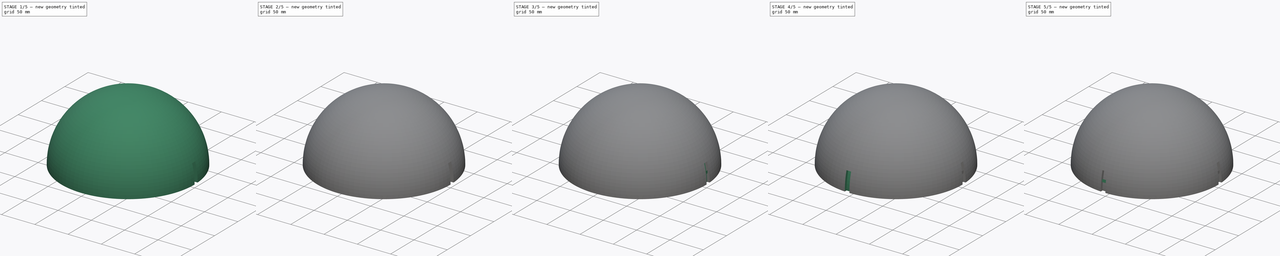
[diagram: build sequence overview — one tinted view per stage of 5, left to right]
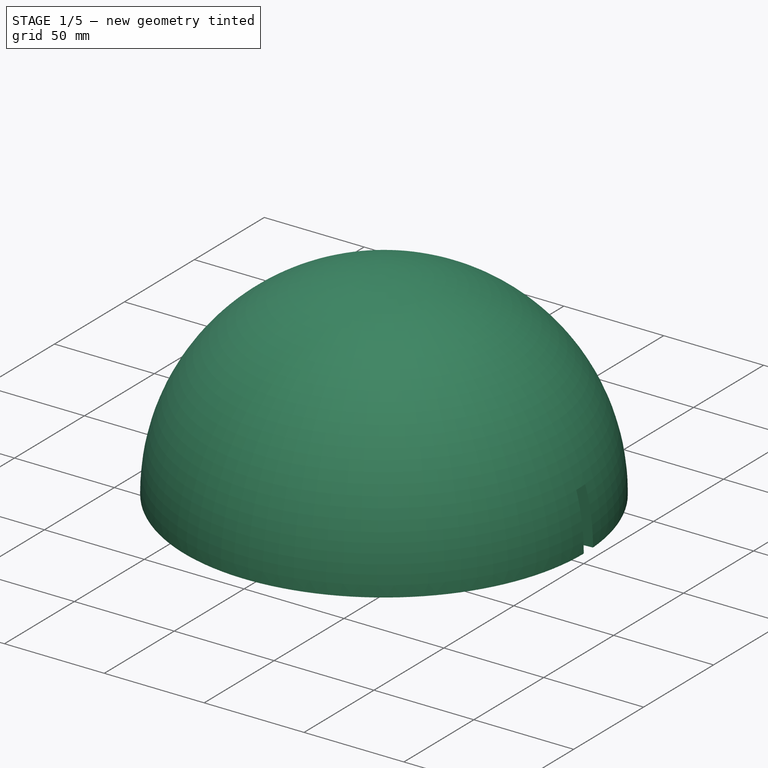
[diagram: stage 1 of 5 — iso view after this stage's code; geometry added in this stage tinted green]
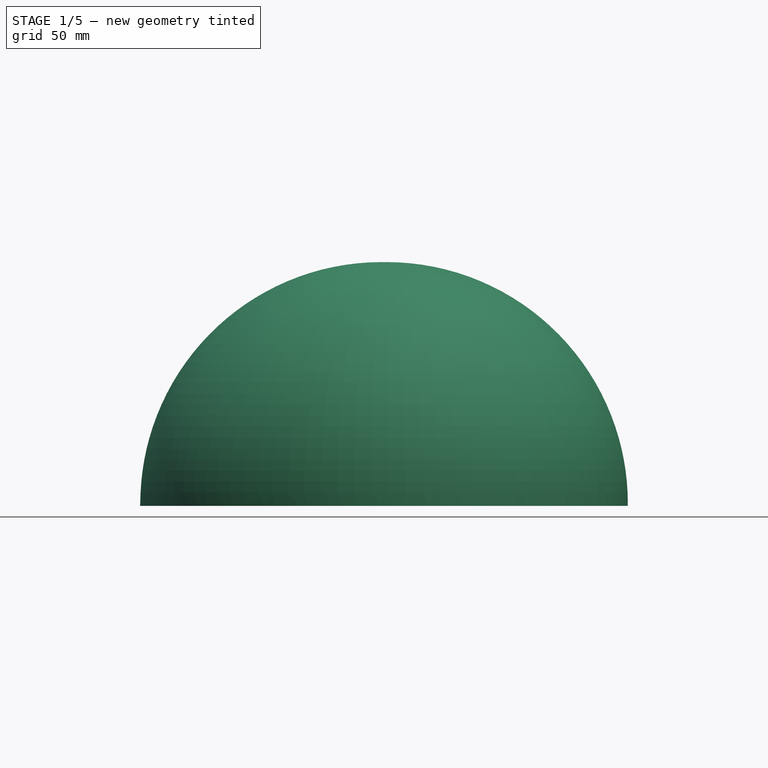
[diagram: stage 1 of 5 — front view after this stage's code; geometry added in this stage tinted green]
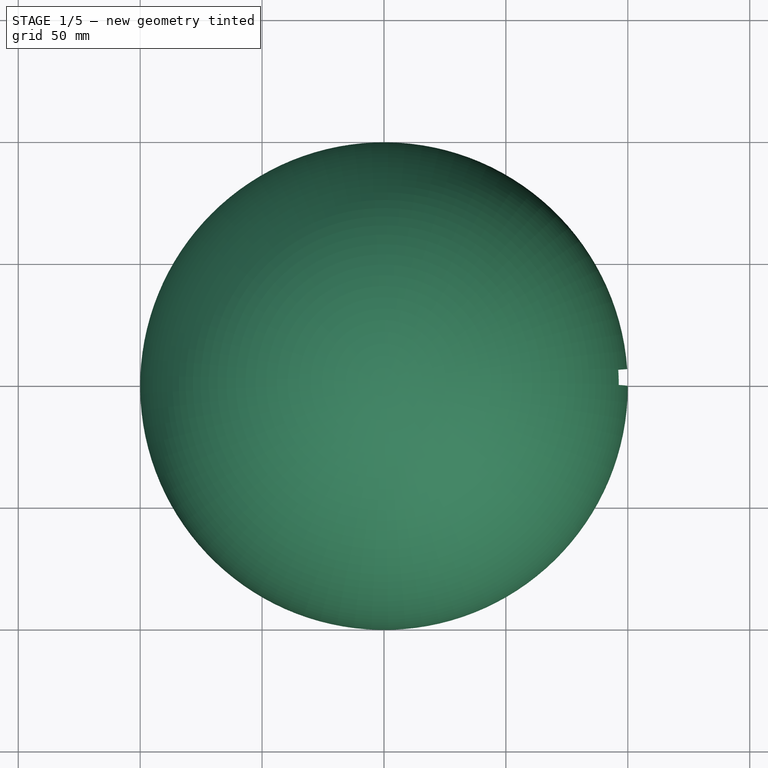
[diagram: stage 1 of 5 — top view after this stage's code; geometry added in this stage tinted green]
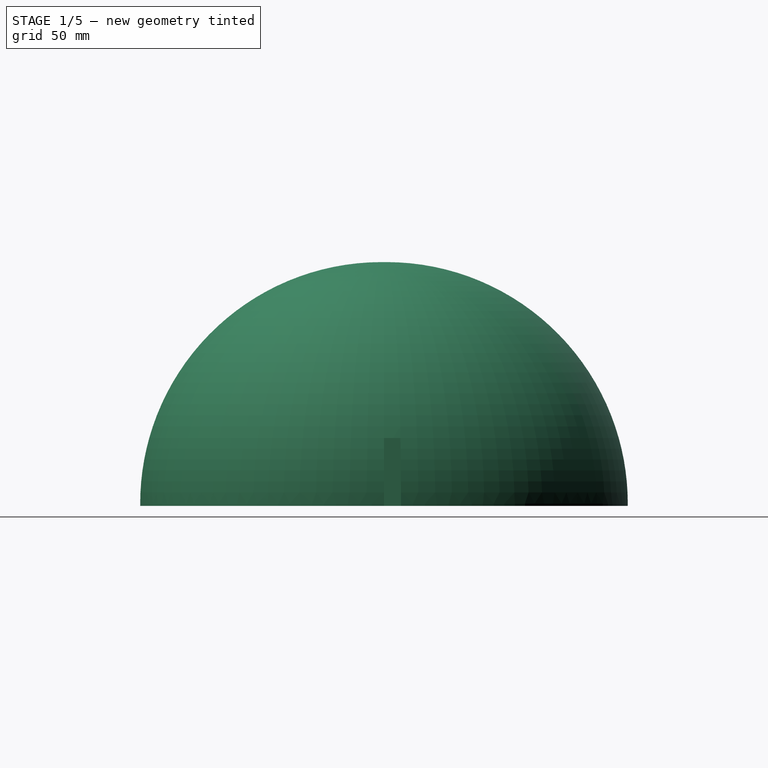
[diagram: stage 1 of 5 — right view after this stage's code; geometry added in this stage tinted green]
FCSTD DOCUMENT  (FreeCAD 0.21R33668 +26 (Git))
Label: cattoy2
License: All rights reserved
LicenseURL: https://en.wikipedia.org/wiki/All_rights_reserved
objects: PartDesign::Mirrored×6, Sketcher::SketchObject×5, PartDesign::Pad×5, PartDesign::SubtractiveSphere×3, PartDesign::Fillet×1, PartDesign::Body×1
note: 30 computed .brp shape members not serialized (recipe doc carries the construction recipe); baked Part::Feature solids carry a one-line shape summary decoded from their .brp

FEATURE [Sketcher::SketchObject] Sketch
  FullyConstrained = false
  MapMode = 5
  Support = -> [XY_Plane]
  sketch-geometry (2):
    g0: Circle CenterX=0 CenterY=0 CenterZ=0 NormalX=0 NormalY=0 NormalZ=1 AngleXU=0 Radius=100
    g1: GeomPoint X=95.886 Y=28.3878 Z=0
  constraints (3):
    c: Coincident(g0,g-1)
    c: PointOnObject(g1,g0)
    c: Distance(g0,g1) = 100
FEATURE [PartDesign::Pad] Pad
  Direction = (0,0,1)
  Length = 100
  Length2 = 10
  Profile = -> Sketch
  ReferenceAxis = -> Sketch [N_Axis]
  Type = 0
FEATURE [PartDesign::Fillet] Fillet
  Base = -> Pad [Edge3]
  BaseFeature = -> Pad
  Radius = 99
  SupportTransform = false
  UseAllEdges = false
FEATURE [PartDesign::SubtractiveSphere] Sphere001
  Angle1 = 0
  Angle2 = 16
  Angle3 = 4
  AttacherType = Attacher::AttachEngine3D
  BaseFeature = -> Fillet
  Radius = 101
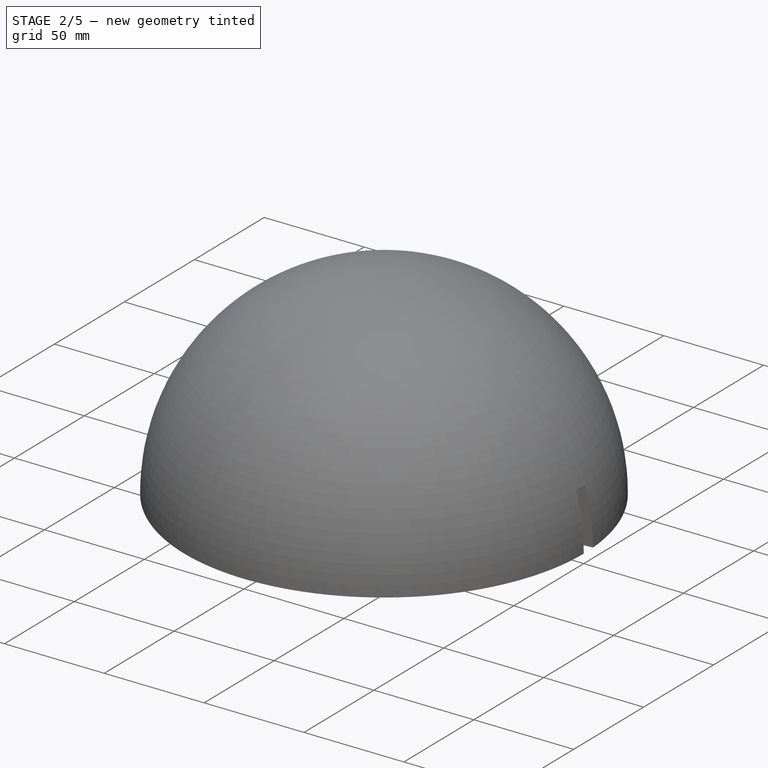
[diagram: stage 2 of 5 — iso view after this stage's code; geometry added in this stage tinted green]
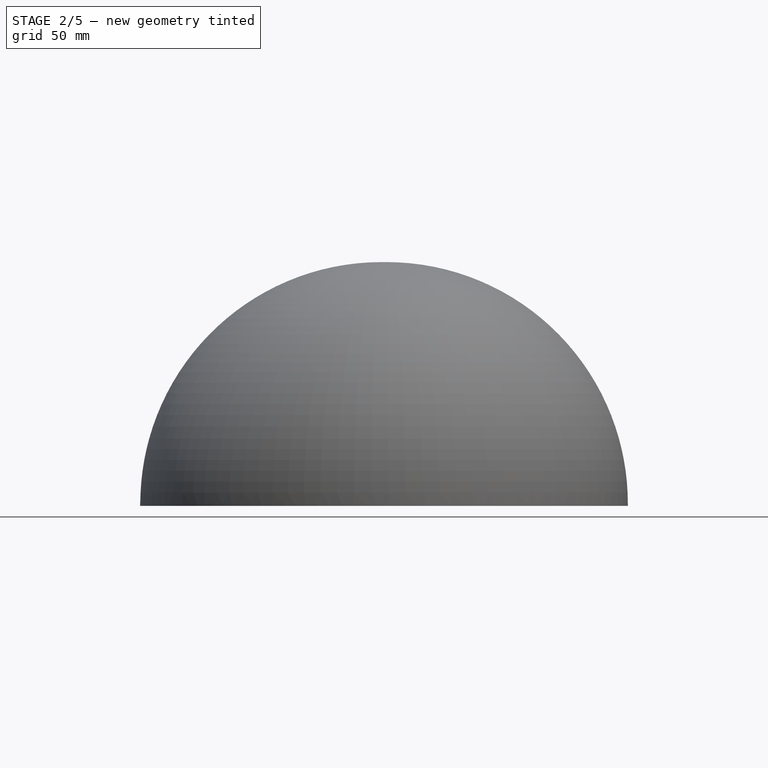
[diagram: stage 2 of 5 — front view after this stage's code; geometry added in this stage tinted green]
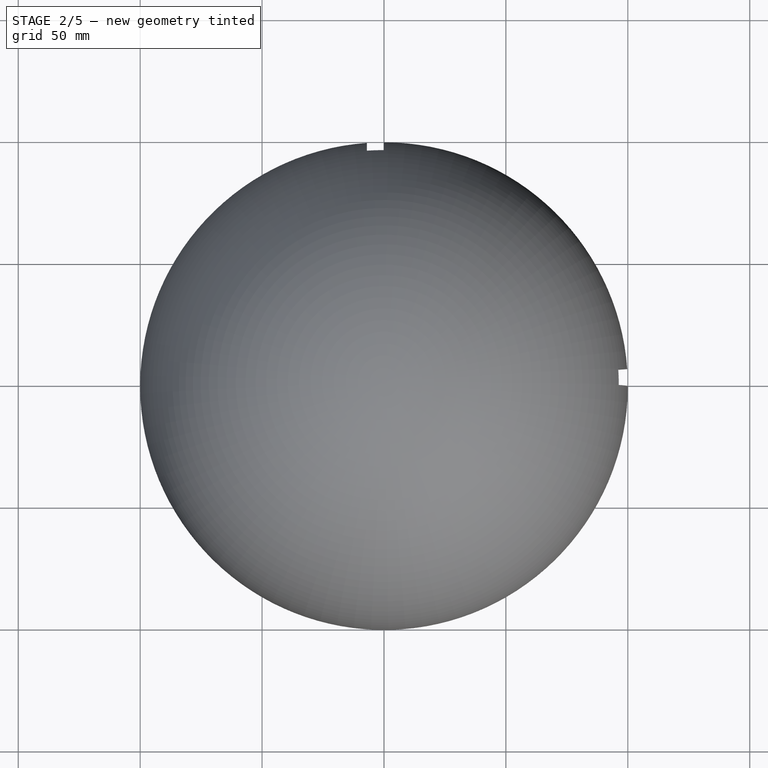
[diagram: stage 2 of 5 — top view after this stage's code; geometry added in this stage tinted green]
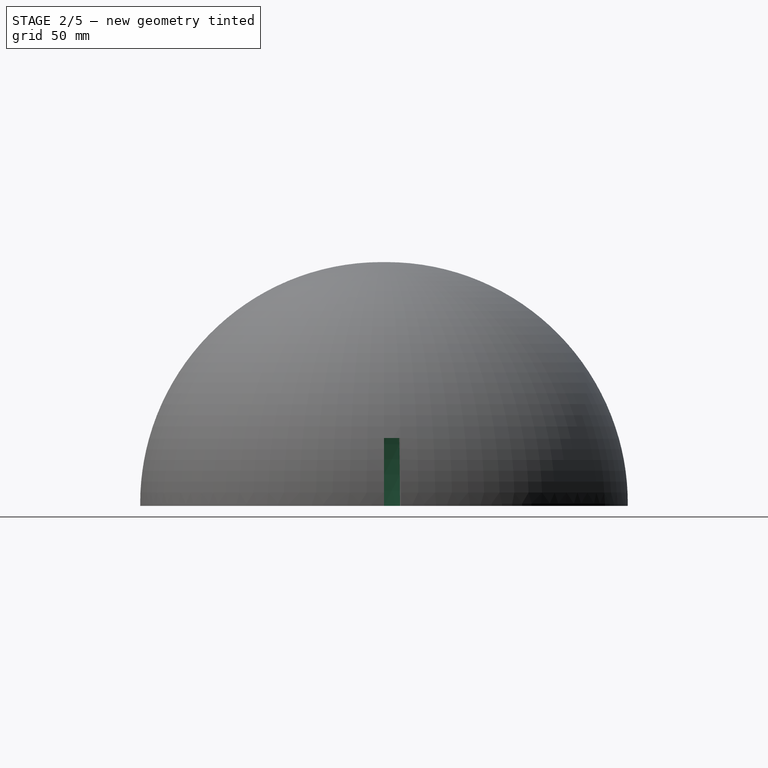
[diagram: stage 2 of 5 — right view after this stage's code; geometry added in this stage tinted green]
FEATURE [PartDesign::SubtractiveSphere] Sphere002
  Angle1 = -4
  Angle2 = 0
  Angle3 = 16
  AttacherType = Attacher::AttachEngine3D
  BaseFeature = -> Sphere001
  MapMode = 2
  Placement = pos=(0,0,0) rot=(0.57735,0.57735,0.57735;2.0944rad)
  Radius = 101
  Support = -> [Y_Axis]
FEATURE [Sketcher::SketchObject] Sketch001
  FullyConstrained = false
  MapMode = 5
  Placement = pos=(-7.0454,2e-15,-2e-15) rot=(0.57735,0.57735,0.57735;2.0944rad)
  sketch-geometry (5):
    g0: GeomPoint X=94 Y=0 Z=0
    g1: ArcOfCircle CenterX=0 CenterY=0 CenterZ=0 NormalX=0 NormalY=0 NormalZ=1 AngleXU=0 Radius=96 StartAngle=0 EndAngle=0.35094
    g2: ArcOfCircle CenterX=0 CenterY=0 CenterZ=0 NormalX=0 NormalY=0 NormalZ=1 AngleXU=0 Radius=94 StartAngle=0 EndAngle=0.35332
    g3: LineSegment StartX=88.1936 StartY=32.5253 StartZ=0 EndX=90.1488 EndY=33.0029 EndZ=0
    g4: LineSegment StartX=94 StartY=0 StartZ=0 EndX=96 EndY=0 EndZ=0
  constraints (11):
    c: PointOnObject(g0,g-1)
    c: Distance(g-1,g0) = 94
    c: Coincident(g1,g-1)
    c: PointOnObject(g1,g-1)
    c: Distance(g1,g1) = 96
    c: Coincident(g2,g1)
    c: Coincident(g2,g0)
    c: Coincident(g3,g2)
    c: Coincident(g3,g1)
    c: Coincident(g4,g2)
    c: Coincident(g4,g1)
FEATURE [Sketcher::SketchObject] Sketch002
  FullyConstrained = true
  MapMode = 5
  Placement = pos=(-7.74297,0,0) rot=(0.57735,0.57735,0.57735;2.0944rad)
  sketch-geometry (4):
    g0: GeomPoint X=98 Y=0 Z=0
    g1: LineSegment StartX=96.6955 StartY=15.9368 StartZ=0 EndX=97.2645 EndY=11.9774 EndZ=0
    g2: LineSegment StartX=97.2645 StartY=11.9774 StartZ=0 EndX=93.3051 EndY=11.4085 EndZ=0
    g3: LineSegment StartX=93.3051 StartY=11.4085 StartZ=0 EndX=96.6955 EndY=15.9368 EndZ=0
  constraints (11):
    c: PointOnObject(g0,g-1)
    c: Distance(g-1,g0) = 98
    c: Coincident(g2,g1)
    c: Coincident(g3,g2)
    c: Coincident(g3,g1)
    c: Distance(g1,g0) = 12
    c: Angle(g1,g2) = 1.5708
    c: Distance(g1) = 4
    c: Distance(g2) = 4
    c: Distance(g-1,g1) = 98
    c: Distance(g-1,g2) = 94
FEATURE [Sketcher::SketchObject] Sketch003
  FullyConstrained = false
  MapMode = 5
  Placement = pos=(0,0,0) rot=(0.57735,0.57735,0.57735;4.18879rad)
  sketch-geometry (4):
    g0: ArcOfCircle CenterX=0 CenterY=0 CenterZ=0 NormalX=0 NormalY=0 NormalZ=1 AngleXU=0 Radius=96 StartAngle=1.20998 EndAngle=1.5708
    g1: ArcOfCircle CenterX=0 CenterY=0 CenterZ=0 NormalX=0 NormalY=0 NormalZ=1 AngleXU=0 Radius=94 StartAngle=1.20715 EndAngle=1.5708
    g2: LineSegment StartX=5.9e-15 StartY=96 StartZ=0 EndX=0 EndY=94 EndZ=0
    g3: LineSegment StartX=33.434 StartY=87.8531 StartZ=0 EndX=33.8918 EndY=89.8184 EndZ=0
  constraints (10):
    c: Coincident(g0,g-1)
    c: PointOnObject(g0,g-2)
    c: Distance(g0,g0) = 96
    c: Coincident(g1,g0)
    c: PointOnObject(g1,g-2)
    c: Distance(g1,g0) = 94
    c: Coincident(g2,g0)
    c: Coincident(g2,g1)
    c: Coincident(g3,g1)
    c: Coincident(g3,g0)
FEATURE [Sketcher::SketchObject] Sketch004
  FullyConstrained = true
  MapMode = 5
  Placement = pos=(0,0,0) rot=(0.57735,0.57735,0.57735;4.18879rad)
  sketch-geometry (4):
    g0: GeomPoint X=0 Y=98 Z=0
    g1: LineSegment StartX=11.929 StartY=92.6968 StartZ=0 EndX=11.929 EndY=96.6968 EndZ=0
    g2: LineSegment StartX=15.929 StartY=96.6968 StartZ=0 EndX=11.929 EndY=96.6968 EndZ=0
    g3: LineSegment StartX=15.929 StartY=96.6968 StartZ=0 EndX=11.929 EndY=92.6968 EndZ=0
  constraints (11):
    c: PointOnObject(g0,g-2)
    c: Distance(g-1,g0) = 98
    c: Coincident(g2,g1)
    c: Horizontal(g2)
    c: Coincident(g3,g2)
    c: Coincident(g3,g1)
    c: Angle(g1,g2) = 1.5708
    c: Distance(g2) = 4
    c: Distance(g0,g1) = 12
    c: Distance(g1) = 4
    c: Distance(g2,g-1) = 98
FEATURE [PartDesign::SubtractiveSphere] Sphere
  Angle1 = -90
  Angle2 = 90
  Angle3 = 360
  AttacherType = Attacher::AttachEngine3D
  BaseFeature = -> Sphere002
  Radius = 94
FEATURE [PartDesign::Pad] Pad001
  BaseFeature = -> Sphere
  Direction = (1,0,0)
  Length = 10
  Length2 = 10
  Profile = -> Sketch001
  ReferenceAxis = -> Sketch001 [N_Axis]
  Type = 0
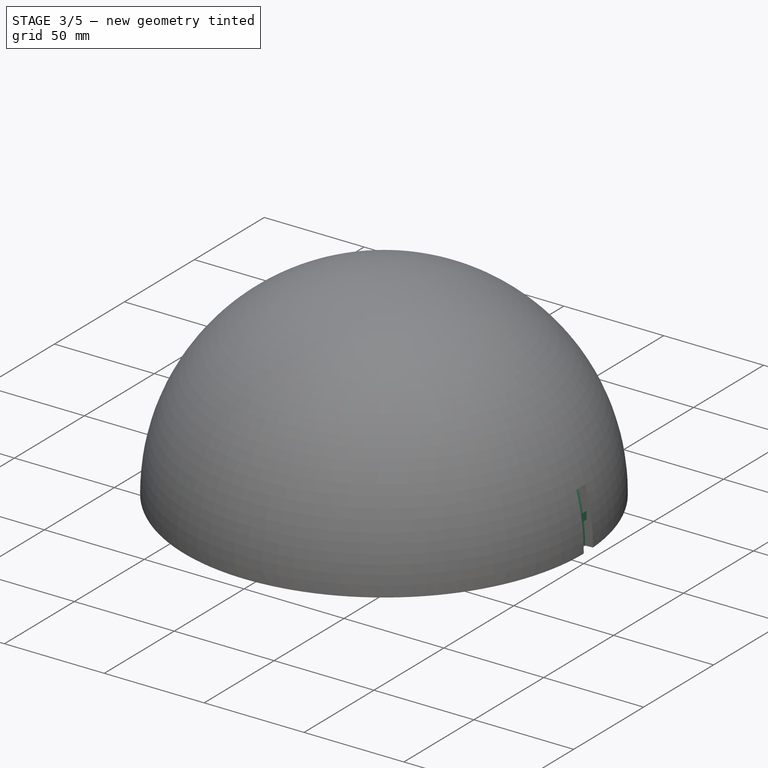
[diagram: stage 3 of 5 — iso view after this stage's code; geometry added in this stage tinted green]
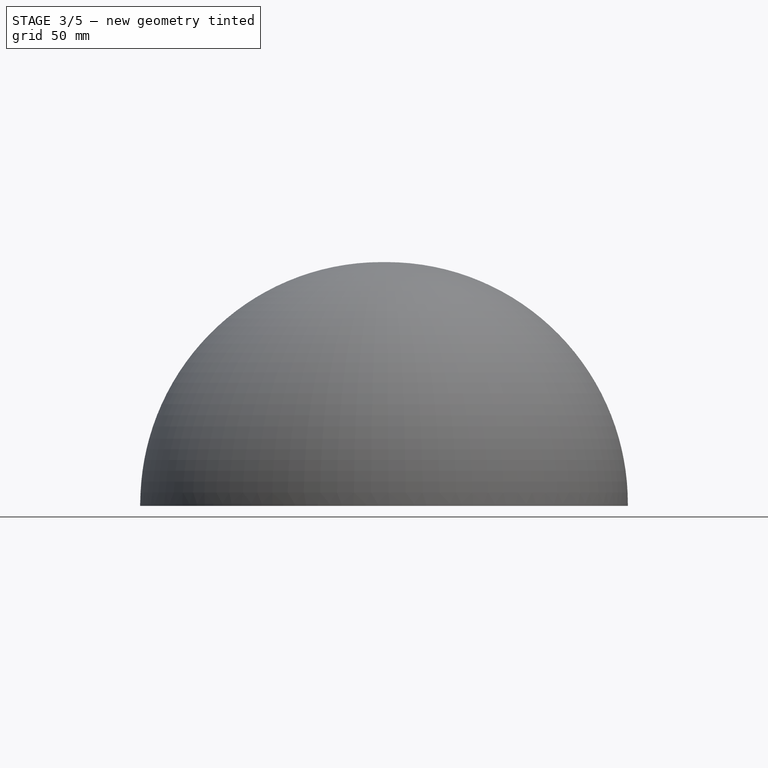
[diagram: stage 3 of 5 — front view after this stage's code; geometry added in this stage tinted green]
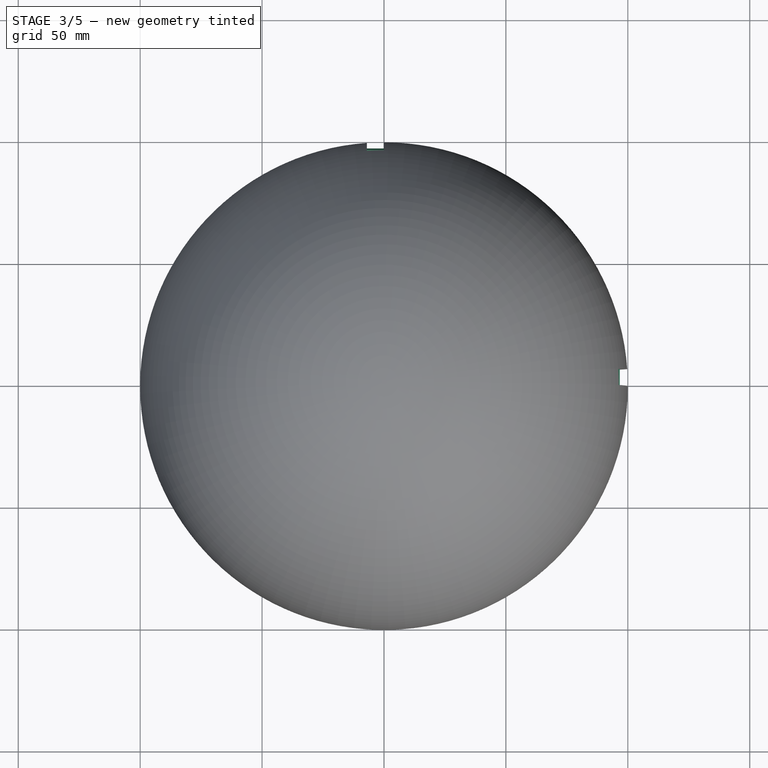
[diagram: stage 3 of 5 — top view after this stage's code; geometry added in this stage tinted green]
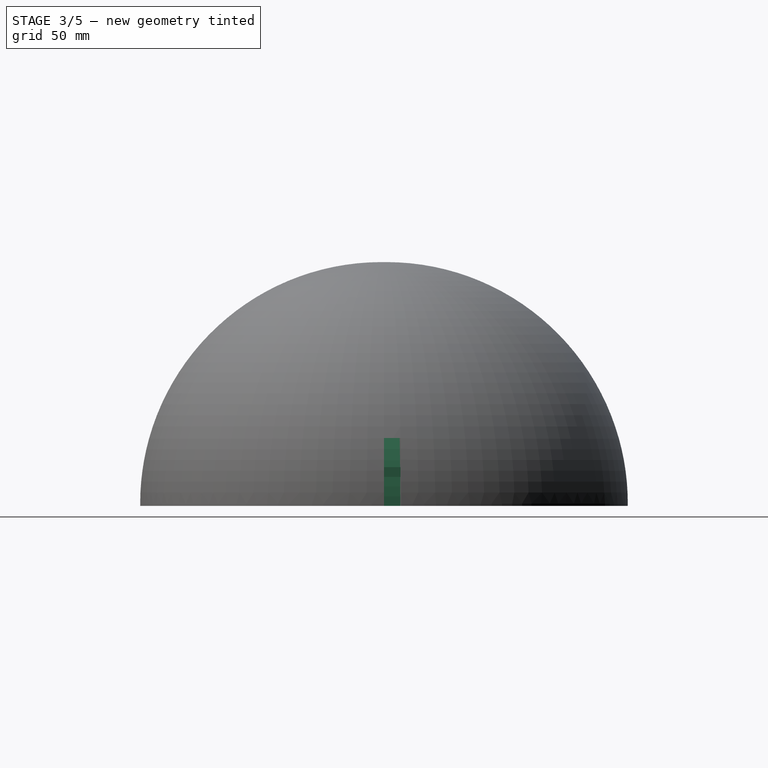
[diagram: stage 3 of 5 — right view after this stage's code; geometry added in this stage tinted green]
FEATURE [PartDesign::Pad] Pad002
  BaseFeature = -> Pad001
  Direction = (1,0,0)
  Length = 10
  Length2 = 10
  Profile = -> Sketch002
  ReferenceAxis = -> Sketch002 [N_Axis]
  Type = 0
FEATURE [PartDesign::Pad] Pad003
  BaseFeature = -> Pad002
  Direction = (0,1,0)
  Length = 10
  Length2 = 10
  Profile = -> Sketch003
  ReferenceAxis = -> Sketch003 [N_Axis]
  Type = 0
FEATURE [PartDesign::Pad] Pad004
  BaseFeature = -> Pad003
  Direction = (0,1,0)
  Length = 10
  Length2 = 10
  Profile = -> Sketch004
  ReferenceAxis = -> Sketch004 [N_Axis]
  Type = 0
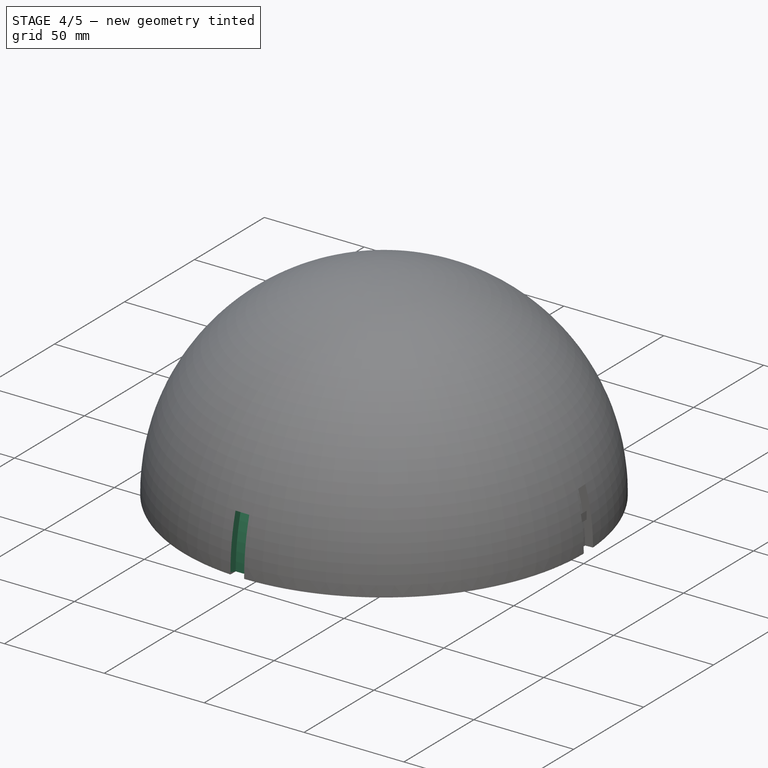
[diagram: stage 4 of 5 — iso view after this stage's code; geometry added in this stage tinted green]
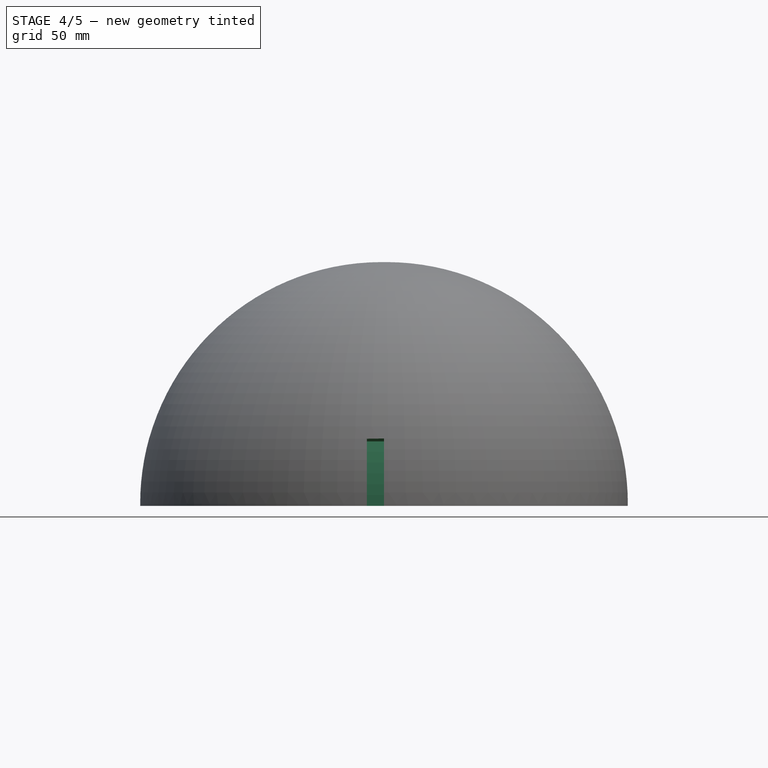
[diagram: stage 4 of 5 — front view after this stage's code; geometry added in this stage tinted green]
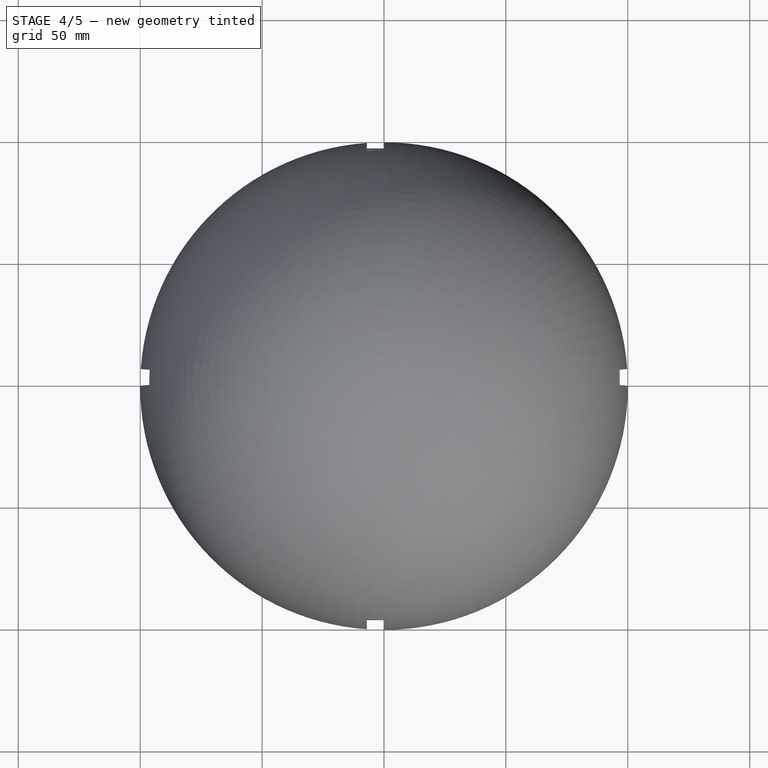
[diagram: stage 4 of 5 — top view after this stage's code; geometry added in this stage tinted green]
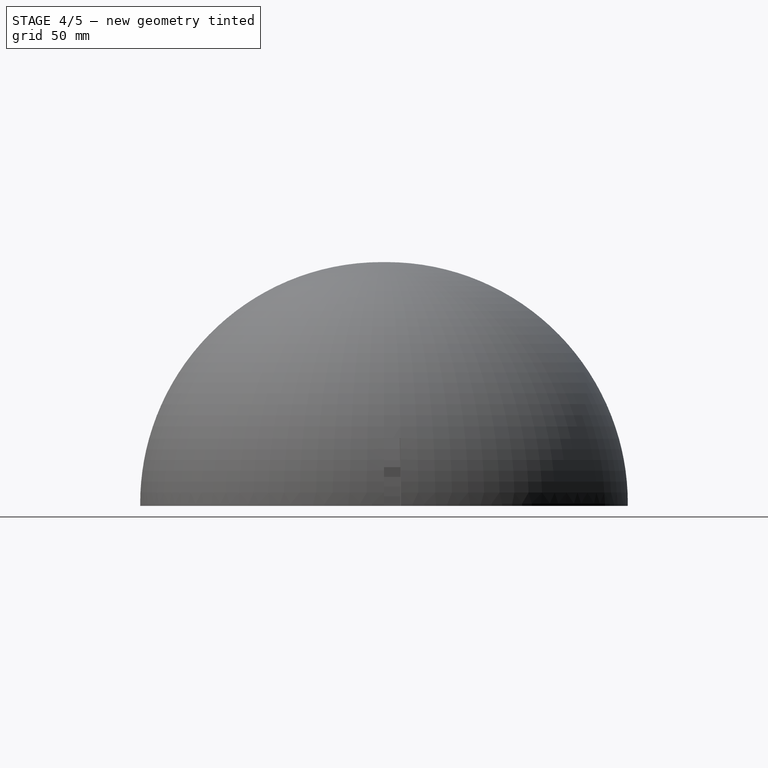
[diagram: stage 4 of 5 — right view after this stage's code; geometry added in this stage tinted green]
FEATURE [PartDesign::Mirrored] Mirrored
  BaseFeature = -> Pad004
  MirrorPlane = -> YZ_Plane
  Originals = -> [Sphere001]
FEATURE [PartDesign::Mirrored] Mirrored001
  BaseFeature = -> Mirrored
  MirrorPlane = -> XZ_Plane
  Originals = -> [Sphere002]
FEATURE [PartDesign::Mirrored] Mirrored002
  BaseFeature = -> Mirrored001
  MirrorPlane = -> Sketch001 [V_Axis]
  Originals = -> [Pad001]
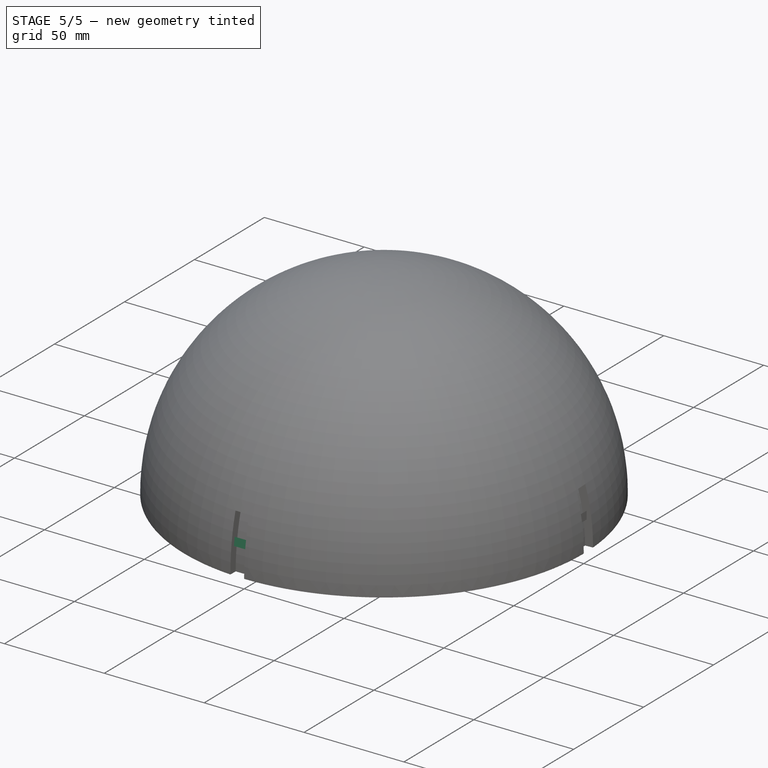
[diagram: stage 5 of 5 — iso view after this stage's code; geometry added in this stage tinted green]
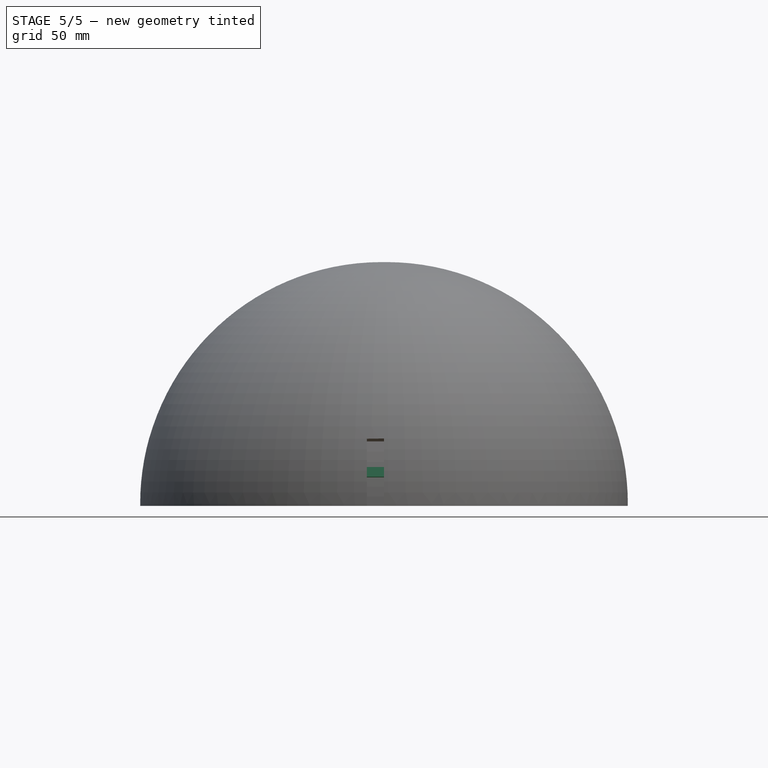
[diagram: stage 5 of 5 — front view after this stage's code; geometry added in this stage tinted green]
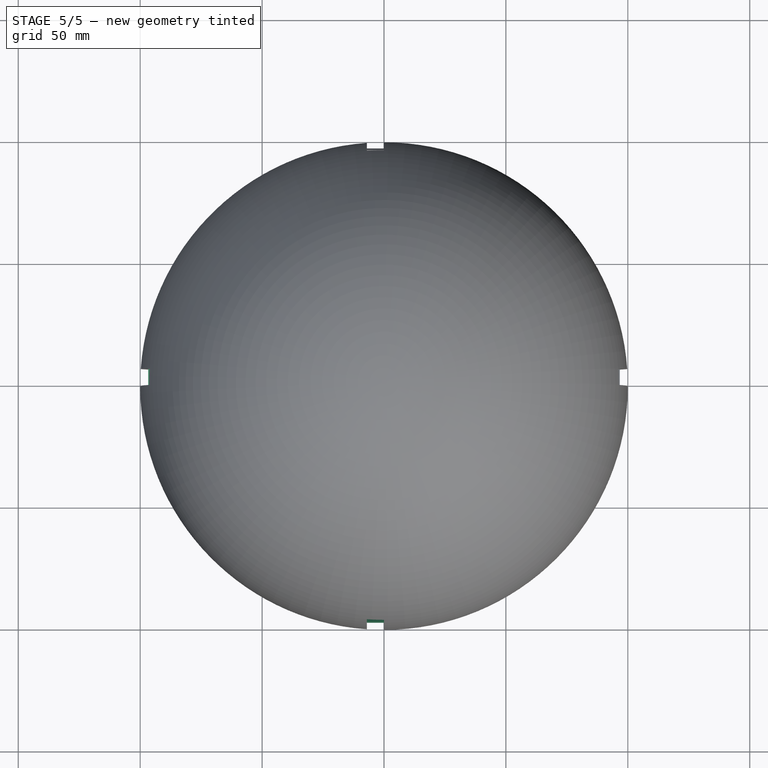
[diagram: stage 5 of 5 — top view after this stage's code; geometry added in this stage tinted green]
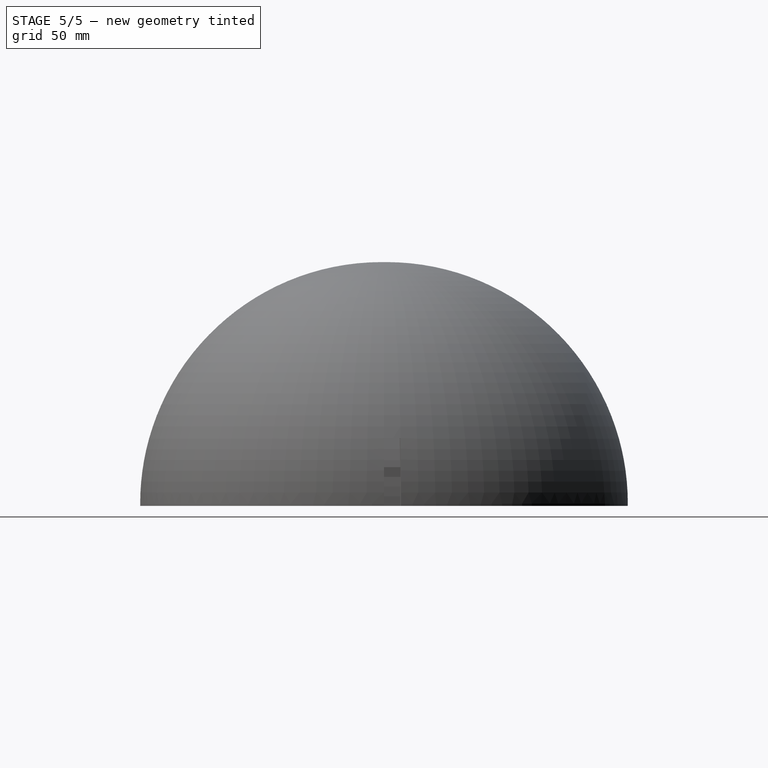
[diagram: stage 5 of 5 — right view after this stage's code; geometry added in this stage tinted green]
FEATURE [PartDesign::Mirrored] Mirrored003
  BaseFeature = -> Mirrored002
  MirrorPlane = -> Sketch002 [V_Axis]
  Originals = -> [Pad002]
FEATURE [PartDesign::Mirrored] Mirrored004
  BaseFeature = -> Mirrored003
  MirrorPlane = -> YZ_Plane
  Originals = -> [Pad003]
FEATURE [PartDesign::Mirrored] Mirrored005
  BaseFeature = -> Mirrored004
  MirrorPlane = -> YZ_Plane
  Originals = -> [Pad004]
FEATURE [PartDesign::Body] Body  label="Körper"
  Group = -> [Sketch,Pad,Fillet,Sphere001,Sphere002,Sketch001,Sketch002,Sketch003,Sketch004,Sphere,Pad001,Pad002,Pad003,Pad004,Mirrored,Mirrored001,Mirrored002,Mirrored003,Mirrored004,Mirrored005]
  Origin = -> Origin
  Tip = -> Mirrored005
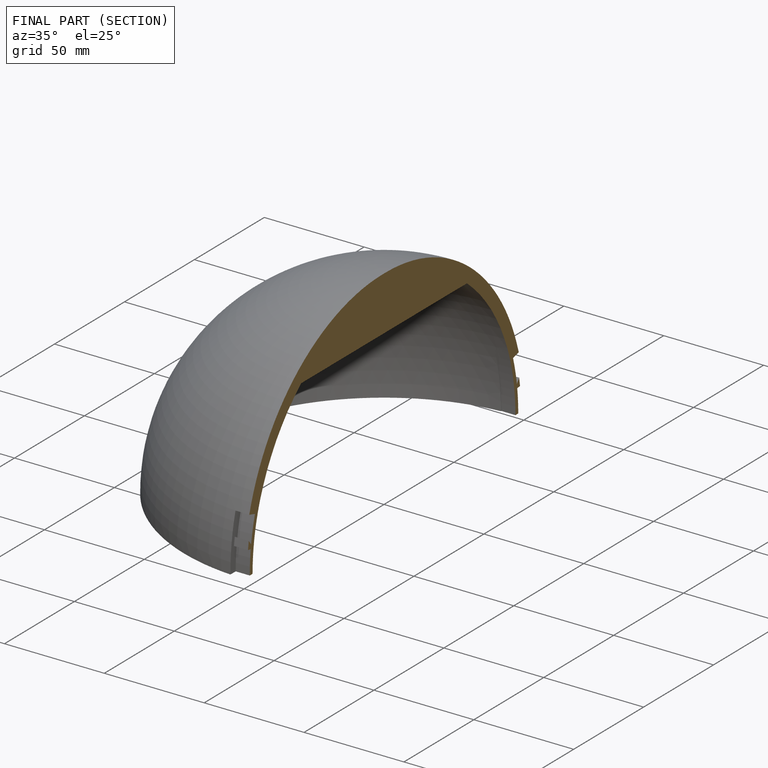
[diagram: finished part — half-section view (interior)]
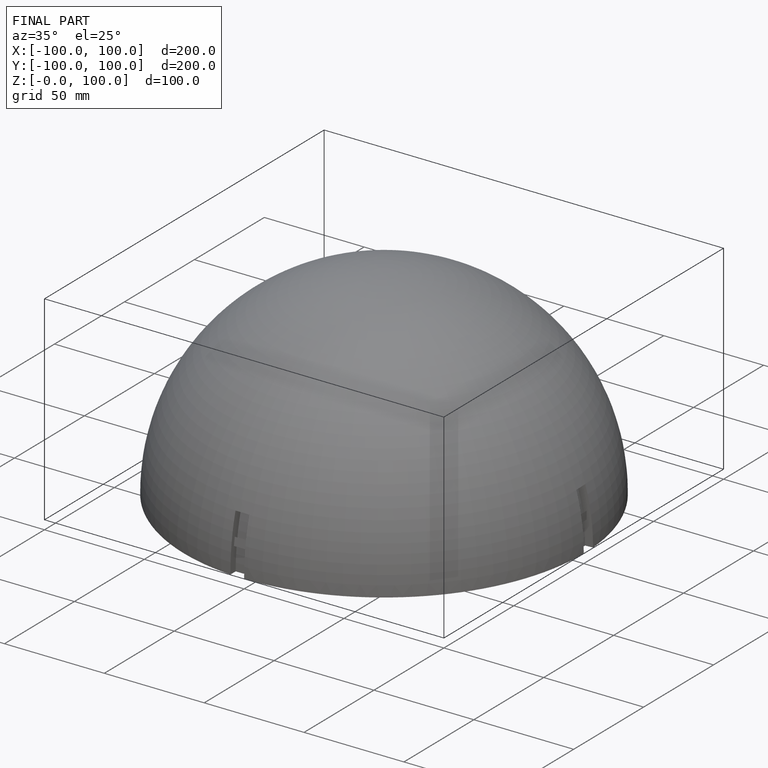
[diagram: finished part — iso view with bounding-box wireframe]
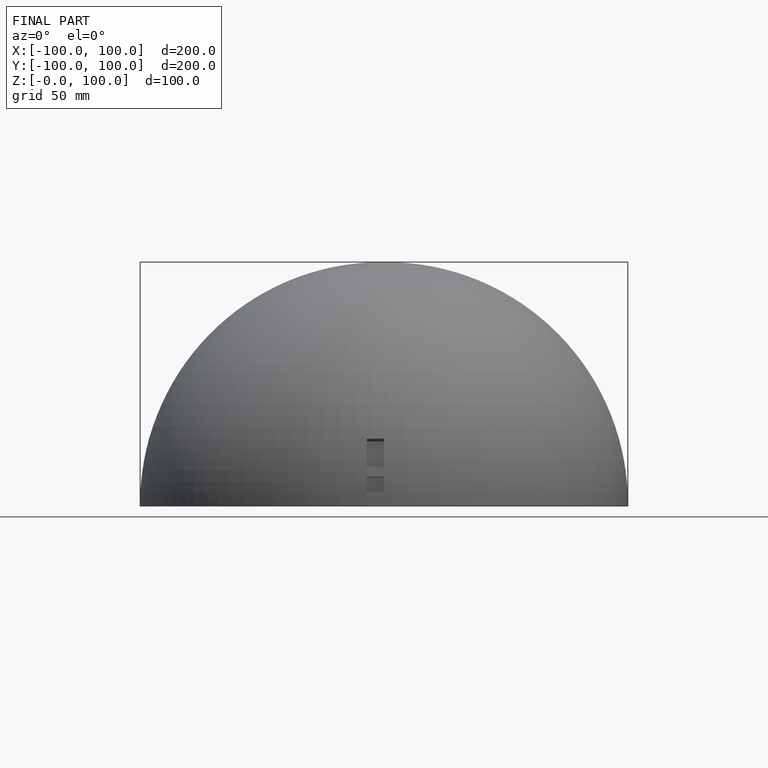
[diagram: finished part — front view with bounding-box wireframe]
